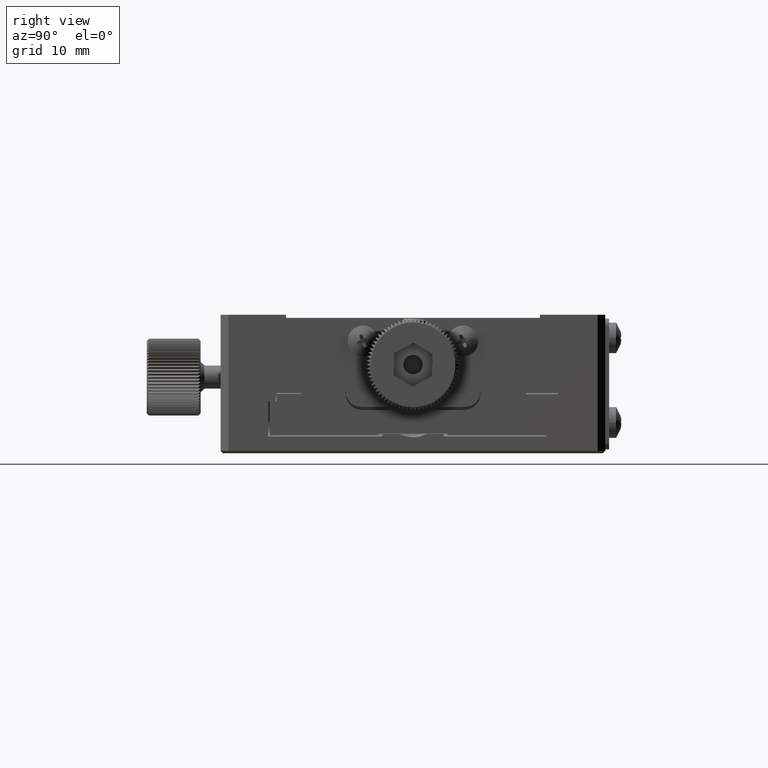
[diagram: clean part render]
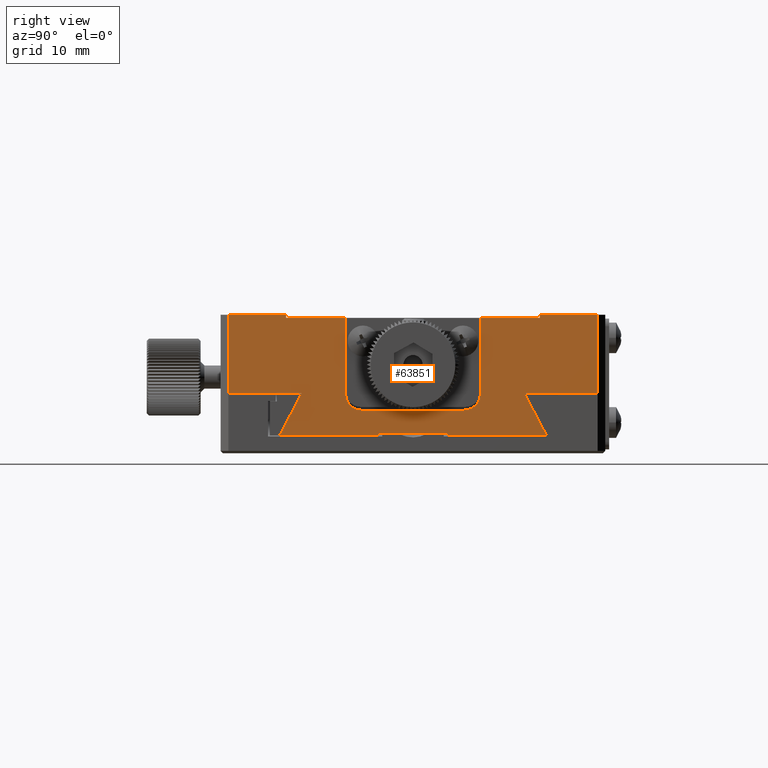
[diagram: same view with one face highlighted and labeled with its STEP entity id]
A machine part, right view. The second image highlights one B-rep face of the part: STEP entity #63851.
In plain terms, the highlighted planar face has unit normal (1, 0, -0).
Its self-contained STEP definition (entity closure, byte-faithful):
#13 = DIRECTION ( 'NONE',  ( 0.000000000000000000, 1.000000000000000000, 0.000000000000000000 ) ) ;
#167 = DIRECTION ( 'NONE',  ( 2.214840756136586775E-16, -0.000000000000000000, 1.000000000000000000 ) ) ;
#430 = ORIENTED_EDGE ( 'NONE', *, *, #7607, .T. ) ;
#598 = ORIENTED_EDGE ( 'NONE', *, *, #55754, .T. ) ;
#709 = EDGE_CURVE ( 'NONE', #42486, #27093, #25608, .T. ) ;
#1276 = DIRECTION ( 'NONE',  ( 0.000000000000000000, 1.000000000000000000, 0.000000000000000000 ) ) ;
#1365 = ORIENTED_EDGE ( 'NONE', *, *, #44483, .T. ) ;
#1430 = CARTESIAN_POINT ( 'NONE',  ( 24.99999999999997513, 6.650000000000001243, 55.60000000000001563 ) ) ;
#2072 = PLANE ( 'NONE',  #21606 ) ;
#2752 = VERTEX_POINT ( 'NONE', #29649 ) ;
#2827 = LINE ( 'NONE', #50502, #39235 ) ;
#3267 = EDGE_CURVE ( 'NONE', #65634, #25357, #22196, .T. ) ;
#3541 = CARTESIAN_POINT ( 'NONE',  ( 25.00000000000000355, -17.33675134594817635, 52.33545643251810731 ) ) ;
#4620 = VERTEX_POINT ( 'NONE', #13598 ) ;
#5092 = EDGE_CURVE ( 'NONE', #35294, #42253, #35090, .T. ) ;
#5160 = CARTESIAN_POINT ( 'NONE',  ( 24.99999999999994671, -8.750000000000000000, 57.70000000000001705 ) ) ;
#6417 = VECTOR ( 'NONE', #42163, 1000.000000000000000 ) ;
#6775 = ORIENTED_EDGE ( 'NONE', *, *, #29464, .T. ) ;
#7607 = EDGE_CURVE ( 'NONE', #25357, #4620, #39472, .T. ) ;
#8234 = CARTESIAN_POINT ( 'NONE',  ( 25.00000000000000355, 23.99999999999999289, 57.82732917920384352 ) ) ;
#9268 = VECTOR ( 'NONE', #46131, 1000.000000000000000 ) ;
#10778 = EDGE_CURVE ( 'NONE', #51462, #65453, #54564, .T. ) ;
#11029 = DIRECTION ( 'NONE',  ( -1.652117596168389334E-15, 0.000000000000000000, 1.000000000000000000 ) ) ;
#11167 = CARTESIAN_POINT ( 'NONE',  ( 25.00000000000000355, 8.750000000000000000, 52.33545643251810731 ) ) ;
#12019 = CARTESIAN_POINT ( 'NONE',  ( 25.00000000000001066, -16.49999999999999289, 67.60000000000002274 ) ) ;
#12096 = LINE ( 'NONE', #28796, #38737 ) ;
#12320 = EDGE_CURVE ( 'NONE', #52545, #42486, #2827, .T. ) ;
#12388 = CARTESIAN_POINT ( 'NONE',  ( 25.00000000000000711, 23.99999999999999289, 68.00000000000001421 ) ) ;
#12802 = VECTOR ( 'NONE', #61814, 1000.000000000000000 ) ;
#13056 = CIRCLE ( 'NONE', #55258, 2.099999999999997868 ) ;
#13079 = EDGE_CURVE ( 'NONE', #17834, #2752, #56232, .T. ) ;
#13408 = CARTESIAN_POINT ( 'NONE',  ( 25.00000000000000355, -17.33675134594817635, 52.33545643251810731 ) ) ;
#13598 = CARTESIAN_POINT ( 'NONE',  ( 25.00000000000000711, 16.49999999999999289, 68.00000000000001421 ) ) ;
#13699 = LINE ( 'NONE', #45686, #68443 ) ;
#14316 = CARTESIAN_POINT ( 'NONE',  ( 25.00000000000000355, 4.500000000000000888, 0.000000000000000000 ) ) ;
#14453 = CARTESIAN_POINT ( 'NONE',  ( 25.00000000000000711, -16.49999999999999645, 68.00000000000001421 ) ) ;
#14673 = VECTOR ( 'NONE', #22894, 1000.000000000000000 ) ;
#15135 = EDGE_CURVE ( 'NONE', #59269, #46419, #22044, .T. ) ;
#15402 = CARTESIAN_POINT ( 'NONE',  ( 25.00000000000000355, -24.00000000000000711, 57.82732917920384352 ) ) ;
#15486 = CARTESIAN_POINT ( 'NONE',  ( 25.00000000000000355, -24.00000000000000711, 52.33545643251810731 ) ) ;
#15508 = ORIENTED_EDGE ( 'NONE', *, *, #3267, .T. ) ;
#16374 = DIRECTION ( 'NONE',  ( -0.000000000000000000, 0.000000000000000000, 1.000000000000000000 ) ) ;
#16654 = VECTOR ( 'NONE', #21744, 1000.000000000000000 ) ;
#16721 = EDGE_CURVE ( 'NONE', #62886, #42253, #61968, .T. ) ;
#17519 = CARTESIAN_POINT ( 'NONE',  ( 25.00000000000000355, -16.38122216426626920, 54.16961365228865333 ) ) ;
#17788 = B_SPLINE_CURVE_WITH_KNOTS ( 'NONE', 3,
 ( #43950, #65155, #17519, #3541 ),
 .UNSPECIFIED., .F., .F.,
 ( 4, 4 ),
 ( 0.000000000000000000, 0.006204353278072026467 ),
 .UNSPECIFIED. ) ;
#17834 = VERTEX_POINT ( 'NONE', #12019 ) ;
#18905 = DIRECTION ( 'NONE',  ( 0.000000000000000000, 1.000000000000000000, 0.000000000000000000 ) ) ;
#19018 = LINE ( 'NONE', #40255, #12802 ) ;
#19068 = CARTESIAN_POINT ( 'NONE',  ( 25.00000000000000355, -25.00000000000000000, 52.55701665810188672 ) ) ;
#19448 = VERTEX_POINT ( 'NONE', #1430 ) ;
#19528 = ORIENTED_EDGE ( 'NONE', *, *, #16721, .F. ) ;
#19661 = CARTESIAN_POINT ( 'NONE',  ( 24.99999999999998934, 16.49999999999999289, 67.60000000000002274 ) ) ;
#19929 = LINE ( 'NONE', #46372, #21285 ) ;
#20944 = LINE ( 'NONE', #11167, #6417 ) ;
#21285 = VECTOR ( 'NONE', #67542, 1000.000000000000000 ) ;
#21606 = AXIS2_PLACEMENT_3D ( 'NONE', #39321, #59828, #38303 ) ;
#21665 = VECTOR ( 'NONE', #55123, 1000.000000000000000 ) ;
#21744 = DIRECTION ( 'NONE',  ( -2.214840756136586775E-16, 0.000000000000000000, -1.000000000000000000 ) ) ;
#21781 = LINE ( 'NONE', #48870, #46541 ) ;
#22044 = B_SPLINE_CURVE_WITH_KNOTS ( 'NONE', 3,
 ( #30922, #46537, #56643, #52101 ),
 .UNSPECIFIED., .F., .F.,
 ( 4, 4 ),
 ( 7.757919228897728493E-18, 0.006204353278072041213 ),
 .UNSPECIFIED. ) ;
#22196 = LINE ( 'NONE', #38202, #14673 ) ;
#22225 = CARTESIAN_POINT ( 'NONE',  ( 25.00000000000000355, 4.500000000000000888, 52.33545643251810731 ) ) ;
#22697 = ORIENTED_EDGE ( 'NONE', *, *, #59092, .T. ) ;
#22894 = DIRECTION ( 'NONE',  ( 2.214840756136586775E-16, -0.000000000000000000, 1.000000000000000000 ) ) ;
#23811 = LINE ( 'NONE', #45688, #50209 ) ;
#25204 = DIRECTION ( 'NONE',  ( -2.214840756136586775E-16, 0.000000000000000000, -1.000000000000000000 ) ) ;
#25357 = VERTEX_POINT ( 'NONE', #12388 ) ;
#25608 = LINE ( 'NONE', #15486, #16654 ) ;
#26367 = VECTOR ( 'NONE', #30683, 1000.000000000000000 ) ;
#26522 = LINE ( 'NONE', #47711, #35014 ) ;
#27093 = VERTEX_POINT ( 'NONE', #15402 ) ;
#27375 = CARTESIAN_POINT ( 'NONE',  ( 25.00000000000000355, -4.500000000000000888, 52.33545643251810731 ) ) ;
#27746 = VERTEX_POINT ( 'NONE', #27375 ) ;
#28204 = CARTESIAN_POINT ( 'NONE',  ( 25.00000000000000355, 17.33675134594818701, 52.33545643251810020 ) ) ;
#28662 = CARTESIAN_POINT ( 'NONE',  ( 25.00000000000000711, -14.45000000000000639, 57.82732917920384352 ) ) ;
#28720 = LINE ( 'NONE', #55137, #48606 ) ;
#28796 = CARTESIAN_POINT ( 'NONE',  ( 25.00000000000000355, -25.00000000000000000, 57.82732917920385773 ) ) ;
#28918 = CARTESIAN_POINT ( 'NONE',  ( 24.99999999999997513, -6.649999999999999467, 55.60000000000001563 ) ) ;
#29234 = ORIENTED_EDGE ( 'NONE', *, *, #15135, .T. ) ;
#29464 = EDGE_CURVE ( 'NONE', #49041, #19448, #13056, .T. ) ;
#29649 = CARTESIAN_POINT ( 'NONE',  ( 24.99999999999996803, -8.750000000000000000, 67.60000000000002274 ) ) ;
#30232 = EDGE_CURVE ( 'NONE', #33734, #27746, #13699, .T. ) ;
#30683 = DIRECTION ( 'NONE',  ( -0.000000000000000000, 0.000000000000000000, 1.000000000000000000 ) ) ;
#30922 = CARTESIAN_POINT ( 'NONE',  ( 25.00000000000000355, 17.33675134594818701, 52.33545643251810020 ) ) ;
#30963 = ORIENTED_EDGE ( 'NONE', *, *, #55256, .T. ) ;
#31027 = CARTESIAN_POINT ( 'NONE',  ( 25.00000000000000355, -4.500000000000000888, 0.000000000000000000 ) ) ;
#33096 = CARTESIAN_POINT ( 'NONE',  ( 25.00000000000000711, 14.45000000000000462, 57.82732917920385063 ) ) ;
#33498 = VECTOR ( 'NONE', #16374, 1000.000000000000000 ) ;
#33677 = ORIENTED_EDGE ( 'NONE', *, *, #36195, .T. ) ;
#33734 = VERTEX_POINT ( 'NONE', #13408 ) ;
#33904 = CARTESIAN_POINT ( 'NONE',  ( 25.00000000000000711, -25.00000000000000000, 68.00000000000001421 ) ) ;
#34465 = CARTESIAN_POINT ( 'NONE',  ( 25.00000000000000711, -24.00000000000000711, 68.00000000000001421 ) ) ;
#34597 = CARTESIAN_POINT ( 'NONE',  ( 25.00000000000000355, -25.00000000000000000, 55.60000000000001563 ) ) ;
#34602 = AXIS2_PLACEMENT_3D ( 'NONE', #68572, #43215, #66714 ) ;
#34950 = LINE ( 'NONE', #34597, #58761 ) ;
#35014 = VECTOR ( 'NONE', #13, 1000.000000000000000 ) ;
#35090 = LINE ( 'NONE', #19068, #42681 ) ;
#35294 = VERTEX_POINT ( 'NONE', #42347 ) ;
#35894 = DIRECTION ( 'NONE',  ( -0.000000000000000000, -1.000000000000000000, -0.000000000000000000 ) ) ;
#36195 = EDGE_CURVE ( 'NONE', #65453, #2752, #19929, .T. ) ;
#37121 = ORIENTED_EDGE ( 'NONE', *, *, #68671, .T. ) ;
#37266 = CARTESIAN_POINT ( 'NONE',  ( 24.99999999999998224, 8.750000000000000000, 67.60000000000002274 ) ) ;
#38202 = CARTESIAN_POINT ( 'NONE',  ( 25.00000000000000355, 23.99999999999999289, 52.33545643251810731 ) ) ;
#38303 = DIRECTION ( 'NONE',  ( -2.214840756136586775E-16, 0.000000000000000000, -1.000000000000000000 ) ) ;
#38737 = VECTOR ( 'NONE', #1276, 1000.000000000000000 ) ;
#38928 = ORIENTED_EDGE ( 'NONE', *, *, #10778, .T. ) ;
#39235 = VECTOR ( 'NONE', #35894, 1000.000000000000000 ) ;
#39321 = CARTESIAN_POINT ( 'NONE',  ( 25.00000000000000355, -25.00000000000000000, 52.33545643251810731 ) ) ;
#39472 = LINE ( 'NONE', #33904, #21665 ) ;
#40255 = CARTESIAN_POINT ( 'NONE',  ( 24.99999999999993960, 0.000000000000000000, 67.60000000000002274 ) ) ;
#41146 = VERTEX_POINT ( 'NONE', #28662 ) ;
#41345 = CARTESIAN_POINT ( 'NONE',  ( 24.99999999999994316, 6.650000000000000355, 57.70000000000001705 ) ) ;
#41795 = LINE ( 'NONE', #31027, #33498 ) ;
#41843 = ORIENTED_EDGE ( 'NONE', *, *, #61017, .T. ) ;
#42163 = DIRECTION ( 'NONE',  ( -2.214840756136586775E-16, 0.000000000000000000, -1.000000000000000000 ) ) ;
#42253 = VERTEX_POINT ( 'NONE', #56188 ) ;
#42347 = CARTESIAN_POINT ( 'NONE',  ( 25.00000000000000355, -4.500000000000000888, 52.55701665810187961 ) ) ;
#42486 = VERTEX_POINT ( 'NONE', #34465 ) ;
#42681 = VECTOR ( 'NONE', #50039, 1000.000000000000000 ) ;
#43215 = DIRECTION ( 'NONE',  ( -1.000000000000000000, 0.000000000000000000, -8.595591057284784070E-16 ) ) ;
#43654 = ORIENTED_EDGE ( 'NONE', *, *, #13079, .F. ) ;
#43950 = CARTESIAN_POINT ( 'NONE',  ( 25.00000000000000711, -14.45000000000000639, 57.82732917920384352 ) ) ;
#44262 = EDGE_CURVE ( 'NONE', #59125, #62386, #19018, .T. ) ;
#44483 = EDGE_CURVE ( 'NONE', #17834, #52545, #21781, .T. ) ;
#45686 = CARTESIAN_POINT ( 'NONE',  ( 25.00000000000000355, -25.00000000000000000, 52.33545643251810731 ) ) ;
#45688 = CARTESIAN_POINT ( 'NONE',  ( 25.00000000000000355, 16.49999999999999289, 52.33545643251810731 ) ) ;
#46131 = DIRECTION ( 'NONE',  ( -0.000000000000000000, 1.000000000000000000, 0.000000000000000000 ) ) ;
#46372 = CARTESIAN_POINT ( 'NONE',  ( 24.99999999999994316, -8.750000000000000000, 67.60000000000002274 ) ) ;
#46419 = VERTEX_POINT ( 'NONE', #33096 ) ;
#46537 = CARTESIAN_POINT ( 'NONE',  ( 25.00000000000000355, 16.38122216426627631, 54.16961365228864622 ) ) ;
#46541 = VECTOR ( 'NONE', #167, 1000.000000000000000 ) ;
#47711 = CARTESIAN_POINT ( 'NONE',  ( 25.00000000000000355, -25.00000000000000000, 57.82732917920384352 ) ) ;
#48111 = ORIENTED_EDGE ( 'NONE', *, *, #50253, .T. ) ;
#48606 = VECTOR ( 'NONE', #59985, 1000.000000000000000 ) ;
#48870 = CARTESIAN_POINT ( 'NONE',  ( 25.00000000000000355, -16.49999999999999645, 52.33545643251810731 ) ) ;
#49041 = VERTEX_POINT ( 'NONE', #51368 ) ;
#49745 = ORIENTED_EDGE ( 'NONE', *, *, #44262, .F. ) ;
#50039 = DIRECTION ( 'NONE',  ( 0.000000000000000000, 1.000000000000000000, 0.000000000000000000 ) ) ;
#50209 = VECTOR ( 'NONE', #25204, 1000.000000000000000 ) ;
#50253 = EDGE_CURVE ( 'NONE', #27093, #41146, #26522, .T. ) ;
#50502 = CARTESIAN_POINT ( 'NONE',  ( 25.00000000000000711, -25.00000000000000000, 68.00000000000001421 ) ) ;
#50634 = ORIENTED_EDGE ( 'NONE', *, *, #56421, .T. ) ;
#51103 = EDGE_LOOP ( 'NONE', ( #43654, #1365, #60331, #61236, #48111, #30963, #60323, #22697, #63938, #19528, #37121, #29234, #598, #15508, #430, #41843, #49745, #58971, #6775, #50634, #38928, #33677 ) ) ;
#51368 = CARTESIAN_POINT ( 'NONE',  ( 24.99999999999997513, 8.750000000000000000, 57.70000000000001705 ) ) ;
#51462 = VERTEX_POINT ( 'NONE', #28918 ) ;
#52101 = CARTESIAN_POINT ( 'NONE',  ( 25.00000000000000711, 14.45000000000000462, 57.82732917920385063 ) ) ;
#52102 = DIRECTION ( 'NONE',  ( -1.000000000000000000, 0.000000000000000000, -8.595591057284784070E-16 ) ) ;
#52545 = VERTEX_POINT ( 'NONE', #14453 ) ;
#54564 = CIRCLE ( 'NONE', #34602, 2.099999999999997868 ) ;
#55123 = DIRECTION ( 'NONE',  ( -0.000000000000000000, -1.000000000000000000, -0.000000000000000000 ) ) ;
#55137 = CARTESIAN_POINT ( 'NONE',  ( 25.00000000000000355, -25.00000000000000000, 52.33545643251810731 ) ) ;
#55256 = EDGE_CURVE ( 'NONE', #41146, #33734, #17788, .T. ) ;
#55258 = AXIS2_PLACEMENT_3D ( 'NONE', #41345, #52102, #11029 ) ;
#55383 = EDGE_CURVE ( 'NONE', #59125, #49041, #20944, .T. ) ;
#55754 = EDGE_CURVE ( 'NONE', #46419, #65634, #12096, .T. ) ;
#56188 = CARTESIAN_POINT ( 'NONE',  ( 25.00000000000000355, 4.500000000000000888, 52.55701665810187961 ) ) ;
#56232 = LINE ( 'NONE', #66624, #9268 ) ;
#56421 = EDGE_CURVE ( 'NONE', #19448, #51462, #34950, .T. ) ;
#56643 = CARTESIAN_POINT ( 'NONE',  ( 25.00000000000000355, 15.41841543008705173, 55.99994549491812990 ) ) ;
#58761 = VECTOR ( 'NONE', #62066, 1000.000000000000000 ) ;
#58971 = ORIENTED_EDGE ( 'NONE', *, *, #55383, .T. ) ;
#59092 = EDGE_CURVE ( 'NONE', #27746, #35294, #41795, .T. ) ;
#59125 = VERTEX_POINT ( 'NONE', #37266 ) ;
#59269 = VERTEX_POINT ( 'NONE', #28204 ) ;
#59828 = DIRECTION ( 'NONE',  ( 1.000000000000000000, 0.000000000000000000, -2.214840756136586775E-16 ) ) ;
#59985 = DIRECTION ( 'NONE',  ( 0.000000000000000000, 1.000000000000000000, 0.000000000000000000 ) ) ;
#60323 = ORIENTED_EDGE ( 'NONE', *, *, #30232, .T. ) ;
#60331 = ORIENTED_EDGE ( 'NONE', *, *, #12320, .T. ) ;
#61017 = EDGE_CURVE ( 'NONE', #4620, #62386, #23811, .T. ) ;
#61236 = ORIENTED_EDGE ( 'NONE', *, *, #709, .T. ) ;
#61814 = DIRECTION ( 'NONE',  ( -0.000000000000000000, 1.000000000000000000, 0.000000000000000000 ) ) ;
#61968 = LINE ( 'NONE', #14316, #26367 ) ;
#62066 = DIRECTION ( 'NONE',  ( -0.000000000000000000, -1.000000000000000000, -0.000000000000000000 ) ) ;
#62386 = VERTEX_POINT ( 'NONE', #19661 ) ;
#62886 = VERTEX_POINT ( 'NONE', #22225 ) ;
#63851 = ADVANCED_FACE ( 'NONE', ( #65048 ), #2072, .T. ) ;
#63938 = ORIENTED_EDGE ( 'NONE', *, *, #5092, .T. ) ;
#65048 = FACE_OUTER_BOUND ( 'NONE', #51103, .T. ) ;
#65155 = CARTESIAN_POINT ( 'NONE',  ( 25.00000000000000355, -15.41841543008704996, 55.99994549491811568 ) ) ;
#65453 = VERTEX_POINT ( 'NONE', #5160 ) ;
#65634 = VERTEX_POINT ( 'NONE', #8234 ) ;
#66624 = CARTESIAN_POINT ( 'NONE',  ( 25.00000000000001421, 0.000000000000000000, 67.60000000000002274 ) ) ;
#66714 = DIRECTION ( 'NONE',  ( -1.652117596168389334E-15, 0.000000000000000000, 1.000000000000000000 ) ) ;
#67542 = DIRECTION ( 'NONE',  ( -0.000000000000000000, 0.000000000000000000, 1.000000000000000000 ) ) ;
#68443 = VECTOR ( 'NONE', #18905, 1000.000000000000000 ) ;
#68572 = CARTESIAN_POINT ( 'NONE',  ( 24.99999999999994671, -6.649999999999999467, 57.70000000000001705 ) ) ;
#68671 = EDGE_CURVE ( 'NONE', #62886, #59269, #28720, .T. ) ;